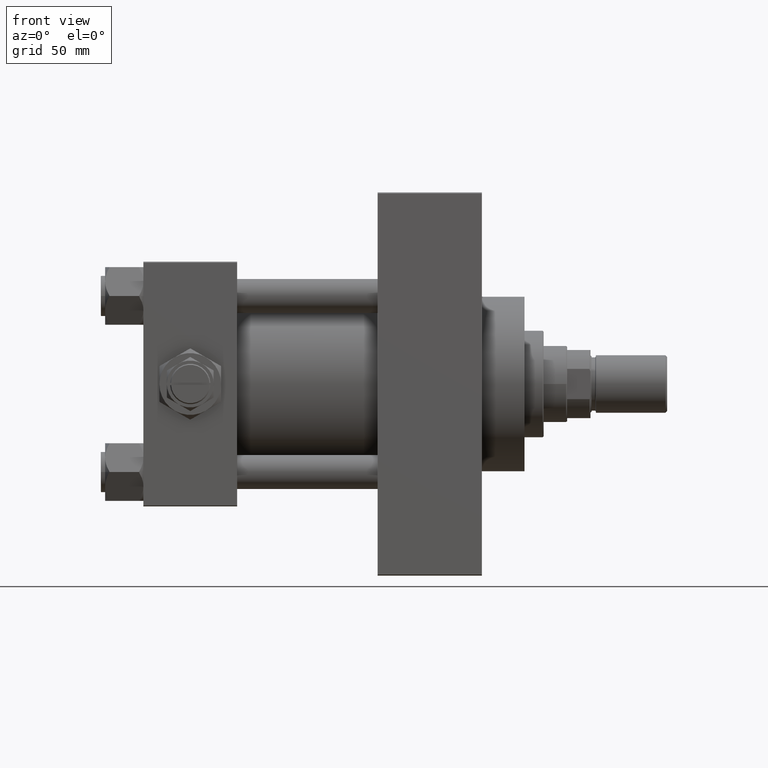
[diagram: clean part render]
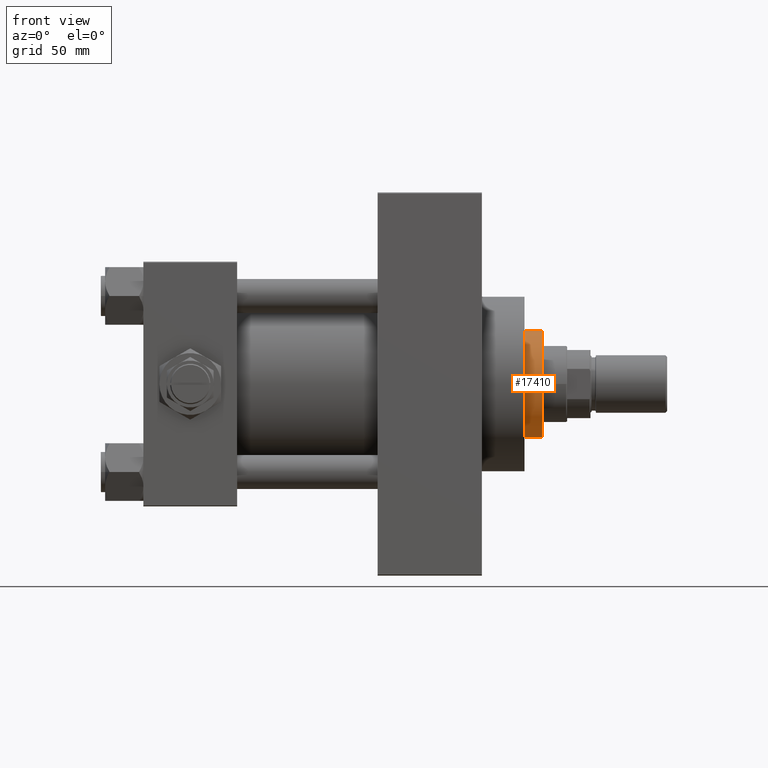
[diagram: same view with one face highlighted and labeled with its STEP entity id]
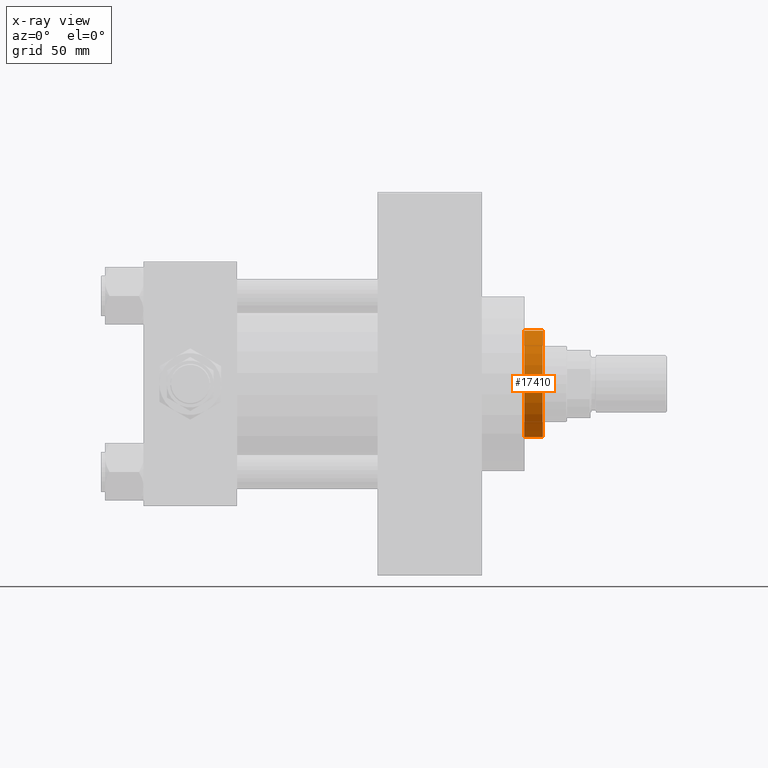
[diagram: x-ray of the same camera — body ghosted, the highlighted face saturated]
A machine part, front view. The second image highlights one B-rep face of the part: STEP entity #17410.
The next image is the same camera in x-ray: the body ghosted, the highlighted face saturated — about 0% of this face is hidden behind the body in this view.
In plain terms, the highlighted cylindrical surface (partial cylindrical patch) has radius 25 mm, axis along (-1, 0, 0).
Its self-contained STEP definition (entity closure, byte-faithful):
#3434 = CARTESIAN_POINT ( 'NONE',  ( 0.000000000000000000, 0.000000000000000000, 52.25999999999999801 ) ) ;
#4075 = CARTESIAN_POINT ( 'NONE',  ( 0.000000000000000000, 0.000000000000000000, 43.25999999999999801 ) ) ;
#7887 = DIRECTION ( 'NONE',  ( 0.000000000000000000, 0.000000000000000000, 1.000000000000000000 ) ) ;
#10014 = VECTOR ( 'NONE', #25647, 1000.000000000000000 ) ;
#10134 = EDGE_CURVE ( 'NONE', #11589, #34685, #29473, .T. ) ;
#11589 = VERTEX_POINT ( 'NONE', #30882 ) ;
#12810 = VERTEX_POINT ( 'NONE', #32421 ) ;
#14137 = AXIS2_PLACEMENT_3D ( 'NONE', #4075, #7887, #41954 ) ;
#14295 = LINE ( 'NONE', #22103, #10014 ) ;
#14302 = FACE_OUTER_BOUND ( 'NONE', #20221, .T. ) ;
#14828 = CARTESIAN_POINT ( 'NONE',  ( 0.000000000000000000, 0.000000000000000000, 51.75999999999996959 ) ) ;
#16003 = ORIENTED_EDGE ( 'NONE', *, *, #43918, .T. ) ;
#17410 = ADVANCED_FACE ( 'NONE', ( #14302 ), #21864, .T. ) ;
#17740 = ORIENTED_EDGE ( 'NONE', *, *, #46561, .T. ) ;
#19535 = DIRECTION ( 'NONE',  ( -0.000000000000000000, -0.000000000000000000, -1.000000000000000000 ) ) ;
#19549 = CARTESIAN_POINT ( 'NONE',  ( -25.00000000000000000, 0.000000000000000000, 43.25999999999999801 ) ) ;
#20221 = EDGE_LOOP ( 'NONE', ( #44266, #16003, #17740, #27135 ) ) ;
#21864 = CYLINDRICAL_SURFACE ( 'NONE', #24839, 25.00000000000000000 ) ;
#22103 = CARTESIAN_POINT ( 'NONE',  ( 25.00000000000000000, 3.061616997868383043E-15, 52.25999999999999801 ) ) ;
#22646 = DIRECTION ( 'NONE',  ( 1.000000000000000000, 0.000000000000000000, 0.000000000000000000 ) ) ;
#24839 = AXIS2_PLACEMENT_3D ( 'NONE', #3434, #38033, #30199 ) ;
#25647 = DIRECTION ( 'NONE',  ( -0.000000000000000000, -0.000000000000000000, -1.000000000000000000 ) ) ;
#27135 = ORIENTED_EDGE ( 'NONE', *, *, #30039, .F. ) ;
#29473 = CIRCLE ( 'NONE', #39993, 25.00000000000000000 ) ;
#30039 = EDGE_CURVE ( 'NONE', #11589, #47366, #31663, .T. ) ;
#30199 = DIRECTION ( 'NONE',  ( -1.000000000000000000, 0.000000000000000000, 0.000000000000000000 ) ) ;
#30882 = CARTESIAN_POINT ( 'NONE',  ( -25.00000000000000000, 0.000000000000000000, 51.75999999999996959 ) ) ;
#31104 = CIRCLE ( 'NONE', #14137, 25.00000000000000000 ) ;
#31663 = LINE ( 'NONE', #43025, #41904 ) ;
#32421 = CARTESIAN_POINT ( 'NONE',  ( 25.00000000000000000, 3.061616997868383043E-15, 43.25999999999999801 ) ) ;
#34685 = VERTEX_POINT ( 'NONE', #36510 ) ;
#36510 = CARTESIAN_POINT ( 'NONE',  ( 25.00000000000000000, 3.061616997868383043E-15, 51.75999999999996959 ) ) ;
#38033 = DIRECTION ( 'NONE',  ( -0.000000000000000000, -0.000000000000000000, -1.000000000000000000 ) ) ;
#39993 = AXIS2_PLACEMENT_3D ( 'NONE', #14828, #46140, #22646 ) ;
#41904 = VECTOR ( 'NONE', #19535, 1000.000000000000000 ) ;
#41954 = DIRECTION ( 'NONE',  ( 1.000000000000000000, 0.000000000000000000, 0.000000000000000000 ) ) ;
#43025 = CARTESIAN_POINT ( 'NONE',  ( -25.00000000000000000, 0.000000000000000000, 52.25999999999999801 ) ) ;
#43918 = EDGE_CURVE ( 'NONE', #34685, #12810, #14295, .T. ) ;
#44266 = ORIENTED_EDGE ( 'NONE', *, *, #10134, .T. ) ;
#46140 = DIRECTION ( 'NONE',  ( 0.000000000000000000, 0.000000000000000000, -1.000000000000000000 ) ) ;
#46561 = EDGE_CURVE ( 'NONE', #12810, #47366, #31104, .T. ) ;
#47366 = VERTEX_POINT ( 'NONE', #19549 ) ;